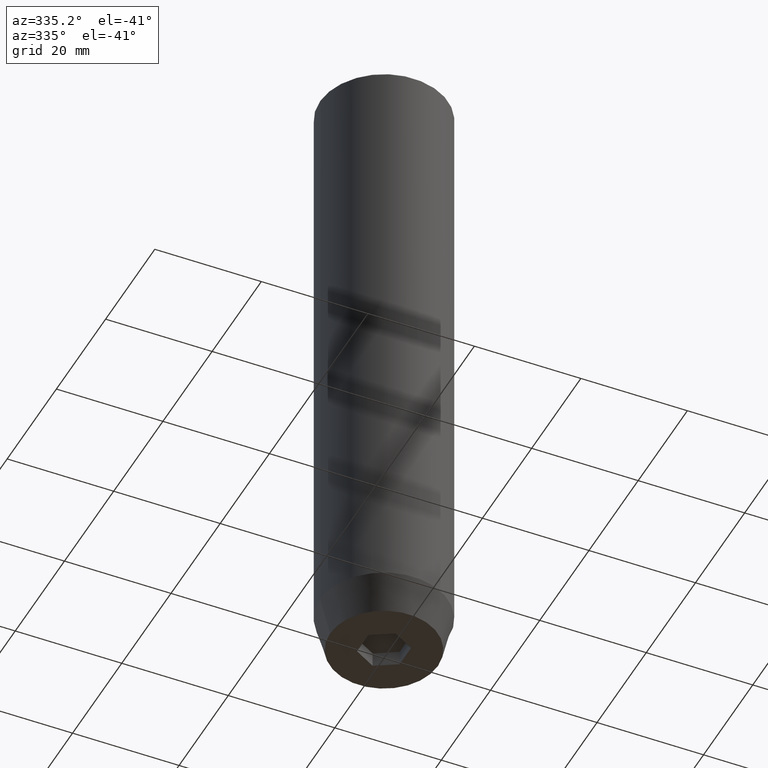
[diagram: clean part render]
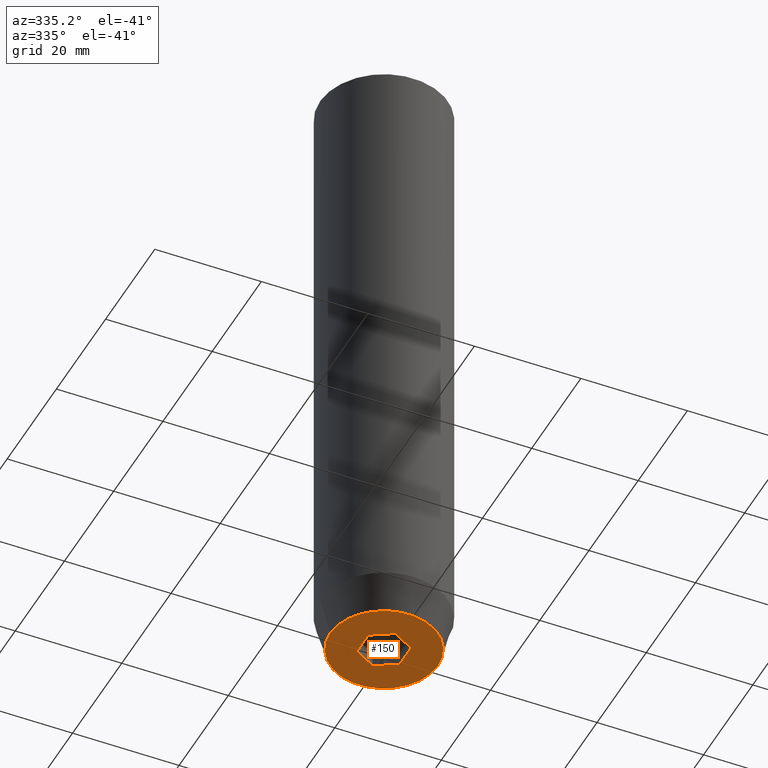
[diagram: same view with one face highlighted and labeled with its STEP entity id]
A machine part, auxiliary view. The second image highlights one B-rep face of the part: STEP entity #150.
In plain terms, the highlighted planar face has unit normal (0, 0, -1).
Its self-contained STEP definition (entity closure, byte-faithful):
#2 = CARTESIAN_POINT ( 'NONE',  ( 0.000000000000000000, 4.618802153517006737, -120.0000000000000000 ) ) ;
#5 = AXIS2_PLACEMENT_3D ( 'NONE', #584, #134, #92 ) ;
#17 = DIRECTION ( 'NONE',  ( -0.8660254037844384856, 0.5000000000000002220, 0.000000000000000000 ) ) ;
#45 = AXIS2_PLACEMENT_3D ( 'NONE', #153, #141, #467 ) ;
#56 = CARTESIAN_POINT ( 'NONE',  ( 2.000000000000000888, -3.464101615137754386, -120.0000000000000000 ) ) ;
#57 = EDGE_CURVE ( 'NONE', #289, #67, #189, .T. ) ;
#58 = ORIENTED_EDGE ( 'NONE', *, *, #64, .F. ) ;
#64 = EDGE_CURVE ( 'NONE', #432, #289, #544, .T. ) ;
#66 = LINE ( 'NONE', #56, #319 ) ;
#67 = VERTEX_POINT ( 'NONE', #2 ) ;
#70 = CARTESIAN_POINT ( 'NONE',  ( -4.000000000000000000, -2.309401076758503368, -120.0000000000000000 ) ) ;
#92 = DIRECTION ( 'NONE',  ( 1.000000000000000000, 0.000000000000000000, 0.000000000000000000 ) ) ;
#107 = ORIENTED_EDGE ( 'NONE', *, *, #229, .F. ) ;
#120 = EDGE_CURVE ( 'NONE', #187, #312, #145, .T. ) ;
#130 = FACE_BOUND ( 'NONE', #292, .T. ) ;
#134 = DIRECTION ( 'NONE',  ( -0.000000000000000000, -0.000000000000000000, 1.000000000000000000 ) ) ;
#141 = DIRECTION ( 'NONE',  ( -0.000000000000000000, -0.000000000000000000, 1.000000000000000000 ) ) ;
#145 = CIRCLE ( 'NONE', #5, 10.12435565298213547 ) ;
#150 = ADVANCED_FACE ( 'NONE', ( #130, #537 ), #414, .T. ) ;
#153 = CARTESIAN_POINT ( 'NONE',  ( 0.000000000000000000, 0.000000000000000000, -120.0000000000000000 ) ) ;
#159 = VERTEX_POINT ( 'NONE', #241 ) ;
#187 = VERTEX_POINT ( 'NONE', #382 ) ;
#189 = LINE ( 'NONE', #324, #461 ) ;
#190 = AXIS2_PLACEMENT_3D ( 'NONE', #457, #546, #330 ) ;
#200 = VECTOR ( 'NONE', #529, 1000.000000000000000 ) ;
#204 = ORIENTED_EDGE ( 'NONE', *, *, #327, .F. ) ;
#225 = DIRECTION ( 'NONE',  ( 0.000000000000000000, 1.000000000000000000, 0.000000000000000000 ) ) ;
#226 = CARTESIAN_POINT ( 'NONE',  ( 4.336808689942017736E-16, -4.618802153517006737, -120.0000000000000000 ) ) ;
#229 = EDGE_CURVE ( 'NONE', #312, #187, #554, .T. ) ;
#241 = CARTESIAN_POINT ( 'NONE',  ( 4.000000000000000000, -2.309401076758502480, -120.0000000000000000 ) ) ;
#246 = CARTESIAN_POINT ( 'NONE',  ( 4.000000000000000000, 0.000000000000000000, -120.0000000000000000 ) ) ;
#272 = ORIENTED_EDGE ( 'NONE', *, *, #57, .F. ) ;
#289 = VERTEX_POINT ( 'NONE', #296 ) ;
#292 = EDGE_LOOP ( 'NONE', ( #272, #58, #204, #334, #523, #556 ) ) ;
#293 = CARTESIAN_POINT ( 'NONE',  ( -10.12435565298213547, 1.354726066681111050E-15, -120.0000000000000000 ) ) ;
#296 = CARTESIAN_POINT ( 'NONE',  ( -4.000000000000000000, 2.309401076758503368, -120.0000000000000000 ) ) ;
#302 = EDGE_CURVE ( 'NONE', #159, #518, #66, .T. ) ;
#306 = EDGE_CURVE ( 'NONE', #342, #159, #431, .T. ) ;
#312 = VERTEX_POINT ( 'NONE', #293 ) ;
#319 = VECTOR ( 'NONE', #552, 1000.000000000000114 ) ;
#324 = CARTESIAN_POINT ( 'NONE',  ( -2.000000000000000000, 3.464101615137754830, -120.0000000000000000 ) ) ;
#327 = EDGE_CURVE ( 'NONE', #518, #432, #376, .T. ) ;
#330 = DIRECTION ( 'NONE',  ( -1.000000000000000000, 0.000000000000000000, -0.000000000000000000 ) ) ;
#334 = ORIENTED_EDGE ( 'NONE', *, *, #302, .F. ) ;
#342 = VERTEX_POINT ( 'NONE', #441 ) ;
#359 = LINE ( 'NONE', #439, #200 ) ;
#373 = DIRECTION ( 'NONE',  ( 0.8660254037844387076, 0.5000000000000001110, 0.000000000000000000 ) ) ;
#376 = LINE ( 'NONE', #462, #504 ) ;
#382 = CARTESIAN_POINT ( 'NONE',  ( 10.12435565298213547, 0.000000000000000000, -120.0000000000000000 ) ) ;
#385 = DIRECTION ( 'NONE',  ( 0.000000000000000000, -1.000000000000000000, 0.000000000000000000 ) ) ;
#405 = EDGE_CURVE ( 'NONE', #67, #342, #359, .T. ) ;
#414 = PLANE ( 'NONE',  #190 ) ;
#425 = ORIENTED_EDGE ( 'NONE', *, *, #120, .F. ) ;
#426 = VECTOR ( 'NONE', #385, 1000.000000000000000 ) ;
#431 = LINE ( 'NONE', #246, #426 ) ;
#432 = VERTEX_POINT ( 'NONE', #70 ) ;
#439 = CARTESIAN_POINT ( 'NONE',  ( 2.000000000000000444, 3.464101615137754386, -120.0000000000000000 ) ) ;
#441 = CARTESIAN_POINT ( 'NONE',  ( 4.000000000000000000, 2.309401076758503368, -120.0000000000000000 ) ) ;
#457 = CARTESIAN_POINT ( 'NONE',  ( 0.000000000000000000, 10.12435565298213547, -120.0000000000000000 ) ) ;
#461 = VECTOR ( 'NONE', #373, 999.9999999999998863 ) ;
#462 = CARTESIAN_POINT ( 'NONE',  ( -2.000000000000000888, -3.464101615137754386, -120.0000000000000000 ) ) ;
#466 = EDGE_LOOP ( 'NONE', ( #425, #107 ) ) ;
#467 = DIRECTION ( 'NONE',  ( 1.000000000000000000, 0.000000000000000000, 0.000000000000000000 ) ) ;
#499 = CARTESIAN_POINT ( 'NONE',  ( -4.000000000000000000, 0.000000000000000000, -120.0000000000000000 ) ) ;
#504 = VECTOR ( 'NONE', #17, 1000.000000000000114 ) ;
#518 = VERTEX_POINT ( 'NONE', #226 ) ;
#523 = ORIENTED_EDGE ( 'NONE', *, *, #306, .F. ) ;
#529 = DIRECTION ( 'NONE',  ( 0.8660254037844385966, -0.5000000000000001110, 0.000000000000000000 ) ) ;
#537 = FACE_OUTER_BOUND ( 'NONE', #466, .T. ) ;
#544 = LINE ( 'NONE', #499, #578 ) ;
#546 = DIRECTION ( 'NONE',  ( 0.000000000000000000, 0.000000000000000000, -1.000000000000000000 ) ) ;
#552 = DIRECTION ( 'NONE',  ( -0.8660254037844384856, -0.5000000000000002220, 0.000000000000000000 ) ) ;
#554 = CIRCLE ( 'NONE', #45, 10.12435565298213547 ) ;
#556 = ORIENTED_EDGE ( 'NONE', *, *, #405, .F. ) ;
#578 = VECTOR ( 'NONE', #225, 1000.000000000000000 ) ;
#584 = CARTESIAN_POINT ( 'NONE',  ( 0.000000000000000000, 0.000000000000000000, -120.0000000000000000 ) ) ;